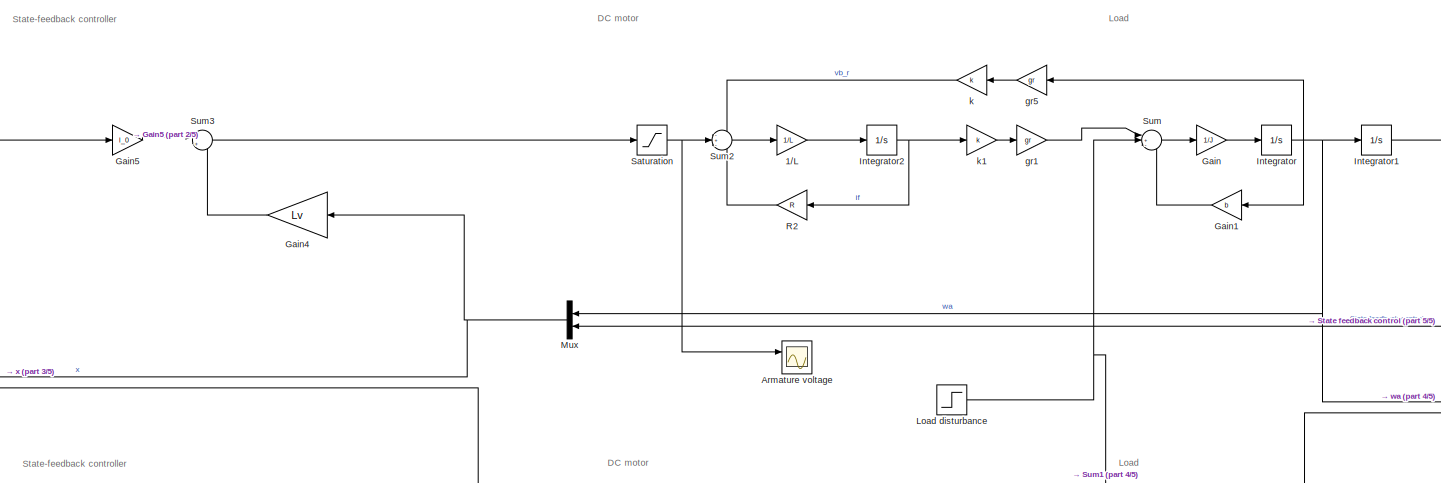
[diagram: root canvas - part 1/5, top center region]
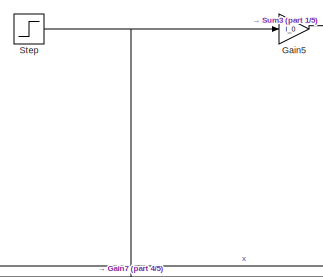
[diagram: root canvas - part 2/5, top left region]
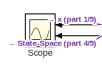
[diagram: root canvas - part 3/5, middle left region]
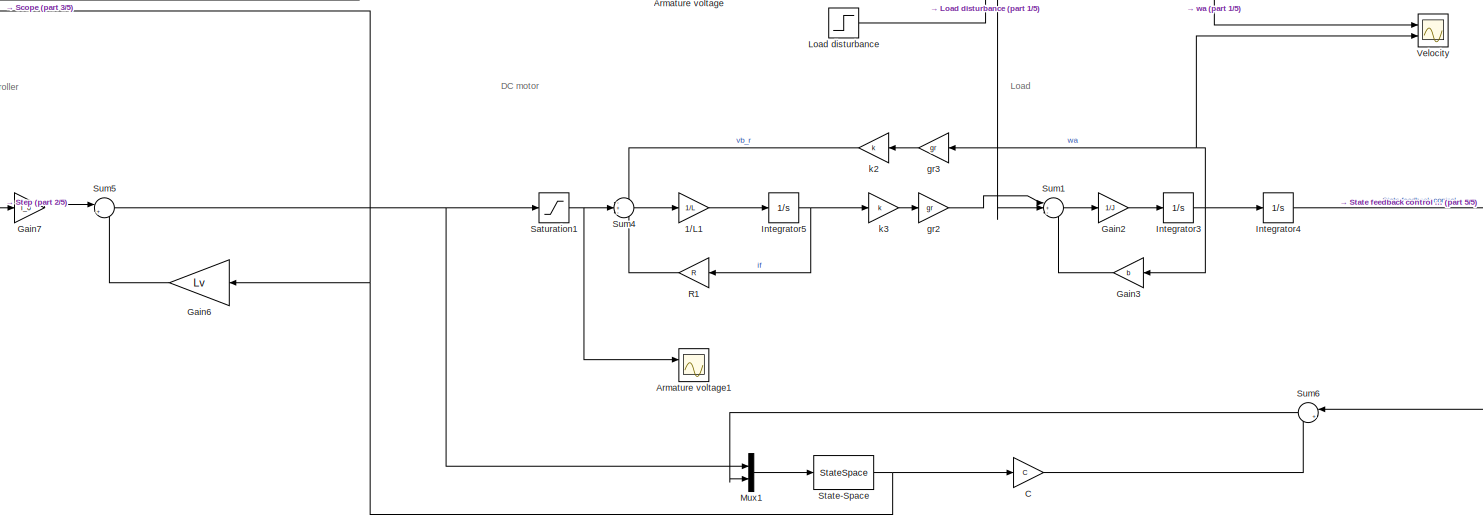
[diagram: root canvas - part 4/5, bottom center region]
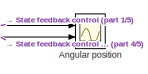
[diagram: root canvas - part 5/5, middle right region]
MODEL slx_1d5a6bb2807a
KIND model
CONFIG AbsTol = auto
CONFIG EnableMultiTasking = off
CONFIG FixedStep = auto
CONFIG MaxStep = 1e-4
CONFIG MinStep = auto
CONFIG RelTol = 1e-3
CONFIG SampleTimeConstraint = Unconstrained
CONFIG SolverName = VariableStepAuto
CONFIG StartTime = 0.0
CONFIG StopTime = 2
BLOCK [Gain] 1//L
  Gain = 1/L
BLOCK [Gain] 1//L1
  Gain = 1/L
BLOCK [Scope] Angular position
  Floating = off
  NumInputPorts = 2
  Ports = [2]
  ScopeSpecificationString = Simulink.scopes.TimeScopeBlockCfg('CurrentConfiguration', extmgr.ConfigurationSet(extmgr.Configuration('Core','General UI',true),extmgr.Configuration('Core','Source UI',true),extmgr.Configuration('Sources','WiredSimulink',true),extmgr.Configuration('Visuals','Time Domain',true,'SerializedDisplays',{struct('MinYLimReal','-0.00645','MaxYLimReal','0.05809','YLabelReal','','MinYLimMag','0.00000','MaxY...<+1792ch>
BLOCK [Scope] Armature voltage
  Floating = off
  NumInputPorts = 2
  Ports = [2]
  ScopeSpecificationString = Simulink.scopes.TimeScopeBlockCfg('CurrentConfiguration', extmgr.ConfigurationSet(extmgr.Configuration('Core','General UI',true),extmgr.Configuration('Core','Source UI',true),extmgr.Configuration('Sources','WiredSimulink',true,'DataLoggingVariableName','ScopeData1'),extmgr.Configuration('Visuals','Time Domain',true,'SerializedDisplays',{struct('MinYLimReal','-167.79112','MaxYLimReal','463.0879','Y...<+1794ch>
BLOCK [Scope] Armature voltage1
  Floating = off
  NumInputPorts = 2
  Ports = [2]
  ScopeSpecificationString = Simulink.scopes.TimeScopeBlockCfg('CurrentConfiguration', extmgr.ConfigurationSet(extmgr.Configuration('Core','General UI',true),extmgr.Configuration('Core','Source UI',true),extmgr.Configuration('Sources','WiredSimulink',true,'DataLoggingVariableName','ScopeData1'),extmgr.Configuration('Visuals','Time Domain',true,'SerializedDisplays',{struct('MinYLimReal','-167.79112','MaxYLimReal','463.0879','Y...<+1809ch>
BLOCK [Gain] C
  Gain = C
  Multiplication = Matrix(K*u) (u vector)
BLOCK [Gain] Gain
  Gain = 1/J
BLOCK [Gain] Gain1
  Gain = b
  NameLocation = top
BLOCK [Gain] Gain2
  Gain = 1/J
BLOCK [Gain] Gain3
  Gain = b
  NameLocation = top
BLOCK [Gain] Gain4
  Gain = Lv
  Multiplication = Matrix(K*u)
  NameLocation = top
BLOCK [Gain] Gain5
  Gain = l_0
BLOCK [Gain] Gain6
  Gain = Lv
  Multiplication = Matrix(K*u)
  NameLocation = top
BLOCK [Gain] Gain7
  Gain = l_0
BLOCK [Integrator] Integrator
  Ports = [1, 1]
BLOCK [Integrator] Integrator1
  Ports = [1, 1]
BLOCK [Integrator] Integrator2
  Ports = [1, 1]
BLOCK [Integrator] Integrator3
  Ports = [1, 1]
BLOCK [Integrator] Integrator4
  Ports = [1, 1]
BLOCK [Integrator] Integrator5
  Ports = [1, 1]
BLOCK [Step] Load disturbance
  After = 1000
  SampleTime = 0
BLOCK [Mux] Mux
  DisplayOption = bar
  Inputs = 2
  NameLocation = top
  Ports = [2, 1]
BLOCK [Mux] Mux1
  DisplayOption = bar
  Inputs = 2
  Ports = [2, 1]
BLOCK [Gain] R1
  Gain = R
BLOCK [Gain] R2
  Gain = R
BLOCK [Saturate] Saturation
  LowerLimit = -Vmax
  UpperLimit = Vmax
BLOCK [Saturate] Saturation1
  LowerLimit = -Vmax
  UpperLimit = Vmax
BLOCK [Scope] Scope
  Floating = off
  NameLocation = top
  NumInputPorts = 2
  Ports = [2]
  ScopeSpecificationString = Simulink.scopes.TimeScopeBlockCfg('CurrentConfiguration', extmgr.ConfigurationSet(extmgr.Configuration('Core','General UI',true),extmgr.Configuration('Core','Source UI',true),extmgr.Configuration('Sources','WiredSimulink',true,'DataLoggingVariableName','ScopeData1'),extmgr.Configuration('Visuals','Time Domain',true,'SerializedDisplays',{struct('MinYLimReal','-0.28952','MaxYLimReal','1.87878','YLab...<+1477ch>
BLOCK [StateSpace] State-Space
  A = A
  B = [B K]
  C = eye(2)
  D = zeros(2,2)
  InitialCondition = 0
  Ports = [1, 1]
BLOCK [Step] Step
  After = 0.1
  SampleTime = 0
  Time = 0
BLOCK [Sum] Sum
  Inputs = |+--
  Ports = [3, 1]
BLOCK [Sum] Sum1
  Inputs = |+--
  Ports = [3, 1]
BLOCK [Sum] Sum2
  Inputs = -+-
  Ports = [3, 1]
BLOCK [Sum] Sum3
  Inputs = |+-
  Ports = [2, 1]
BLOCK [Sum] Sum4
  Inputs = -+-
  Ports = [3, 1]
BLOCK [Sum] Sum5
  Inputs = |+-
  Ports = [2, 1]
BLOCK [Sum] Sum6
  Inputs = |+-
  NameLocation = top
  Ports = [2, 1]
BLOCK [Scope] Velocity
  Floating = off
  NumInputPorts = 2
  Ports = [2]
  ScopeSpecificationString = Simulink.scopes.TimeScopeBlockCfg('CurrentConfiguration', extmgr.ConfigurationSet(extmgr.Configuration('Core','General UI',true),extmgr.Configuration('Core','Source UI',true),extmgr.Configuration('Sources','WiredSimulink',true,'DataLoggingVariableName','ScopeData2'),extmgr.Configuration('Visuals','Time Domain',true,'SerializedDisplays',{struct('MinYLimReal','-0.2904','MaxYLimReal','1.87888','YLabe...<+1645ch>
BLOCK [Gain] gr1
  Gain = gr
BLOCK [Gain] gr2
  Gain = gr
BLOCK [Gain] gr3
  Gain = gr
  NameLocation = top
BLOCK [Gain] gr5
  Gain = gr
  NameLocation = top
BLOCK [Gain] k
  Gain = k
BLOCK [Gain] k1
  Gain = k
BLOCK [Gain] k2
  Gain = k
BLOCK [Gain] k3
  Gain = k
ANNOTATION (root): DC motor
ANNOTATION (root): Load
ANNOTATION (root): State-feedback controller
LINE 1//L1:1 -> Integrator5:1
LINE 1//L:1 -> Integrator2:1
LINE C:1 -> Sum6:2
LINE Gain1:1 -> Sum:3
LINE Gain2:1 -> Integrator3:1
LINE Gain3:1 -> Sum1:3
LINE Gain4:1 -> Sum3:2
LINE Gain5:1 -> Sum3:1
LINE Gain6:1 -> Sum5:2
LINE Gain7:1 -> Sum5:1
LINE Gain:1 -> Integrator:1
NET Integrator1:1 -> Angular position:1, Mux:2
NET Integrator2:1 -> R2:1, k1:1
NET Integrator3:1 -> Gain3:1, Integrator4:1, Velocity:2, gr3:1
NET Integrator4:1 -> Angular position:2, Sum6:1
NET Integrator5:1 -> R1:1, k3:1
NET Integrator:1 -> Gain1:1, Integrator1:1, Mux:1, Velocity:1, gr5:1
NET Load disturbance:1 -> Sum1:2, Sum:2
LINE Mux1:1 -> State-Space:1
NET Mux:1 -> Gain4:1, Scope:1
LINE R1:1 -> Sum4:3
LINE R2:1 -> Sum2:3
NET Saturation1:1 -> Armature voltage1:1, Sum4:2
NET Saturation:1 -> Armature voltage:1, Sum2:2
NET State-Space:1 -> C:1, Gain6:1, Scope:2
NET Step:1 -> Gain5:1, Gain7:1
LINE Sum1:1 -> Gain2:1
LINE Sum2:1 -> 1//L:1
LINE Sum3:1 -> Saturation:1
LINE Sum4:1 -> 1//L1:1
NET Sum5:1 -> Mux1:1, Saturation1:1
LINE Sum6:1 -> Mux1:2
LINE Sum:1 -> Gain:1
LINE gr1:1 -> Sum:1
LINE gr2:1 -> Sum1:1
LINE gr3:1 -> k2:1
LINE gr5:1 -> k:1
LINE k1:1 -> gr1:1
LINE k2:1 -> Sum4:1
LINE k3:1 -> gr2:1
LINE k:1 -> Sum2:1
note: NET lines group one-source signal fan-out (src -> all destinations, sorted); 1:1 wires keep LINE
